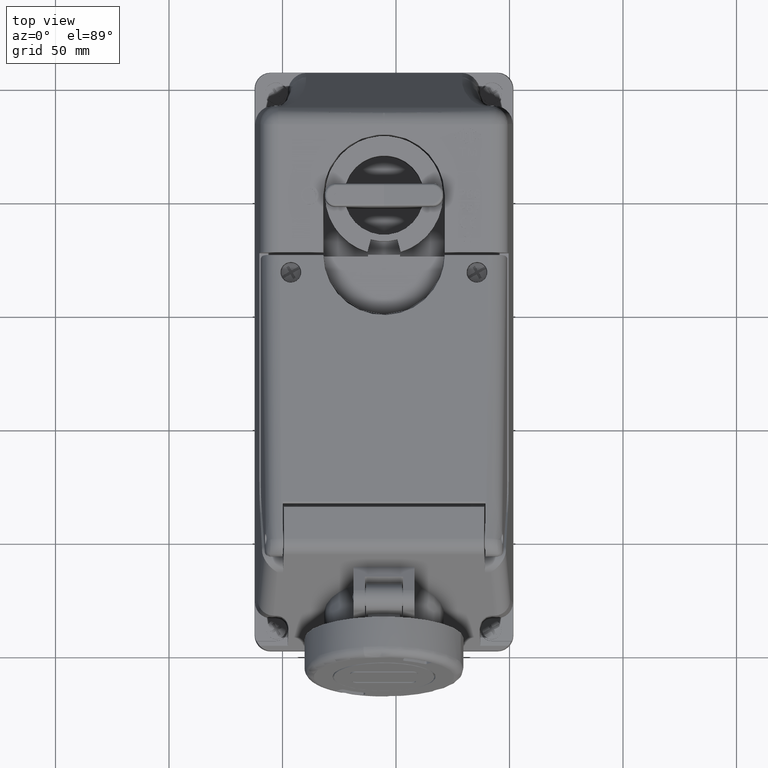
[diagram: clean part render]
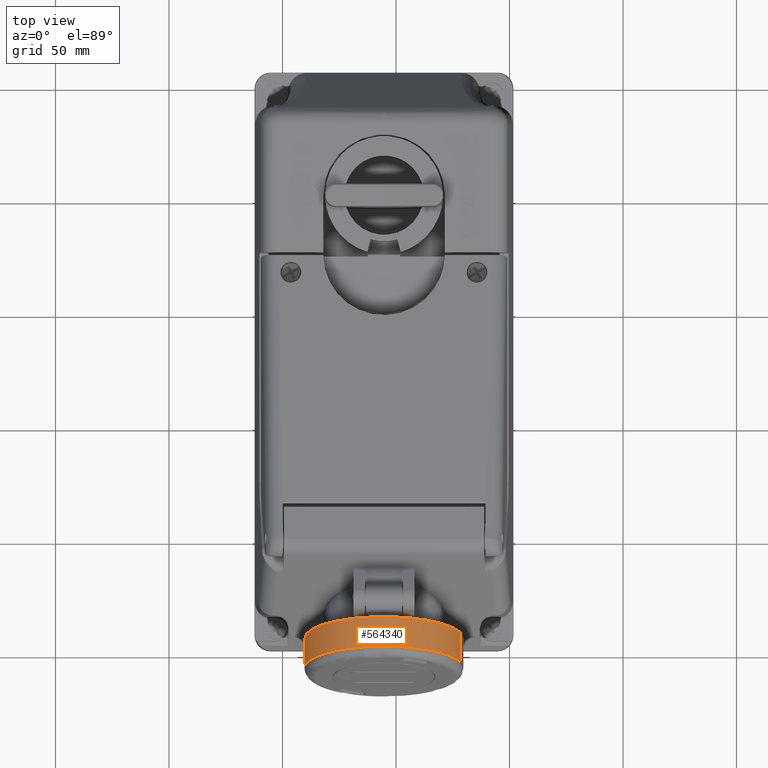
[diagram: same view with one face highlighted and labeled with its STEP entity id]
A machine part, top view. The second image highlights one B-rep face of the part: STEP entity #564340.
In plain terms, the highlighted cylindrical surface (partial cylindrical patch) has radius 35 mm, axis along (-0, -0.9659, 0.2588).
Its self-contained STEP definition (entity closure, byte-faithful):
#37300=CARTESIAN_POINT('',(239.192596079873,-57.2983324700364,
8.95627238172449));
#37310=DIRECTION('',(-4.95159540247529E-14,-0.965925841065878,
0.25881898995471));
#37320=VECTOR('',#37310,1.);
#37330=LINE('',#37300,#37320);
#37340=CARTESIAN_POINT('',(239.192596079873,-57.2983324700363,
8.95627238172449));
#37350=VERTEX_POINT('',#37340);
#37360=CARTESIAN_POINT('',(239.192596079873,-70.3383313244257,
12.4503287461131));
#37370=VERTEX_POINT('',#37360);
#37380=EDGE_CURVE('',#37350,#37370,#37330,.T.);
#37400=CARTESIAN_POINT('',(272.99999999999,-67.9937763902203,
21.200328879973));
#37410=DIRECTION('',(-4.95159540247529E-14,-0.965925841065878,
0.25881898995471));
#37420=DIRECTION('',(-0.258819045102558,0.249999946731315,
0.933012716165508));
#37430=AXIS2_PLACEMENT_3D('',#37400,#37410,#37420);
#37440=CIRCLE('',#37430,35.);
#37490=CARTESIAN_POINT('',(306.807403920107,-65.6492214560149,
29.9503290138328));
#37500=VERTEX_POINT('',#37490);
#37530=CARTESIAN_POINT('',(306.807403920107,-52.6092226016255,
26.4562726494443));
#37540=DIRECTION('',(-4.95159540247529E-14,-0.965925841065878,
0.25881898995471));
#37550=VECTOR('',#37540,1.);
#37560=LINE('',#37530,#37550);
#37570=CARTESIAN_POINT('',(306.807403920107,-52.6092226016255,
26.4562726494443));
#37580=VERTEX_POINT('',#37570);
#37590=EDGE_CURVE('',#37580,#37500,#37560,.T.);
#37610=CARTESIAN_POINT('',(272.99999999999,-54.9537775358309,
17.7062725155844));
#37620=DIRECTION('',(-4.95159540247529E-14,-0.965925841065878,
0.25881898995471));
#37630=DIRECTION('',(0.965925826289058,0.0669872838344405,
0.250000003824568));
#37640=AXIS2_PLACEMENT_3D('',#37610,#37620,#37630);
#37650=CIRCLE('',#37640,35.);
#432230=EDGE_CURVE('',#37580,#37350,#37650,.T.);
#548980=CARTESIAN_POINT('',(263.9413334214,-59.2437782546243,
53.8557739457658));
#548990=VERTEX_POINT('',#548980);
#549000=EDGE_CURVE('',#548990,#37370,#37440,.T.);
#564170=CARTESIAN_POINT('',(272.99999999999,-54.9537775358309,
17.7062725155844));
#564180=DIRECTION('',(-4.95159540247529E-14,-0.965925841065878,
0.25881898995471));
#564190=DIRECTION('',(0.965925826289058,0.0669872838344405,
0.250000003824568));
#564200=AXIS2_PLACEMENT_3D('',#564170,#564180,#564190);
#564210=CYLINDRICAL_SURFACE('',#564200,35.);
#564220=CARTESIAN_POINT('',(304.754252032364,-64.1840568802253,
35.4183989008879));
#564230=VERTEX_POINT('',#564220);
#564240=EDGE_CURVE('',#564230,#548990,#37440,.T.);
#564250=ORIENTED_EDGE('',*,*,#564240,.F.);
#564260=ORIENTED_EDGE('',*,*,#549000,.F.);
#564270=ORIENTED_EDGE('',*,*,#37380,.T.);
#564280=ORIENTED_EDGE('',*,*,#432230,.T.);
#564290=ORIENTED_EDGE('',*,*,#37590,.F.);
#564300=EDGE_CURVE('',#37500,#564230,#37440,.T.);
#564310=ORIENTED_EDGE('',*,*,#564300,.F.);
#564320=EDGE_LOOP('',(#564310,#564290,#564280,#564270,#564260,#564250));
#564330=FACE_OUTER_BOUND('',#564320,.T.);
#564340=ADVANCED_FACE('',(#564330),#564210,.T.);